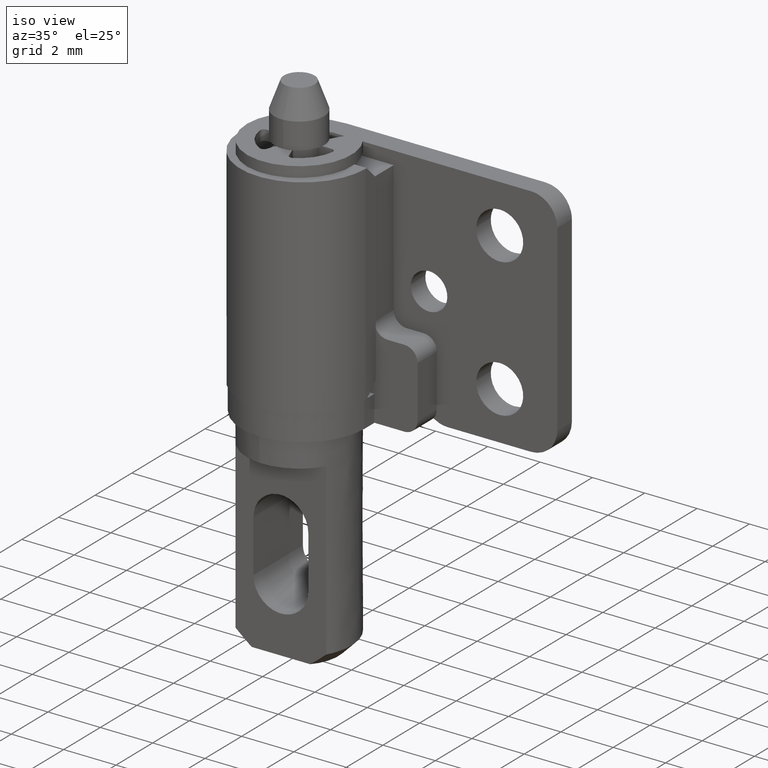
[diagram: clean part render]
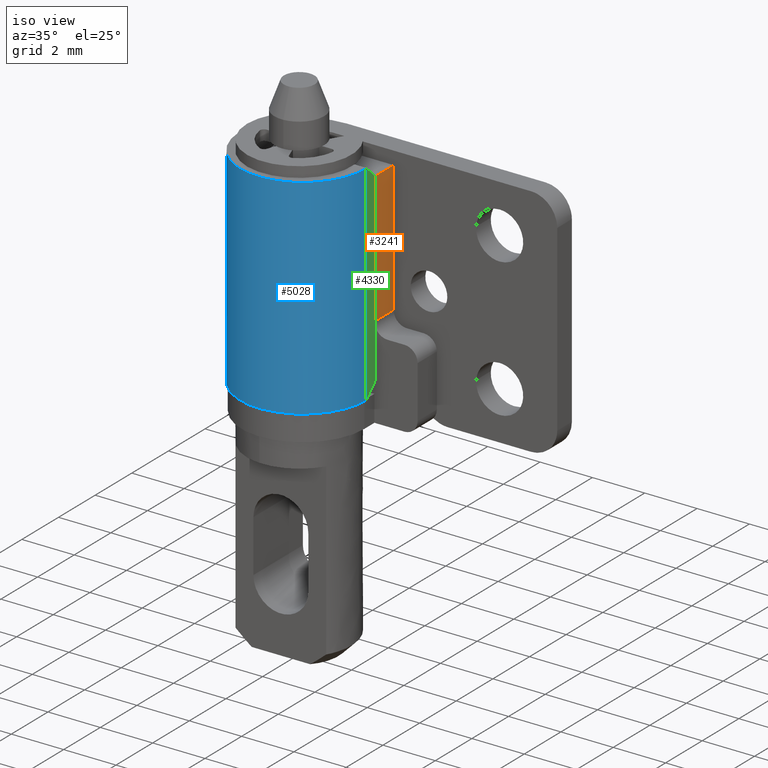
[diagram: same view with three faces highlighted in distinct colors, each labeled with its STEP entity id]
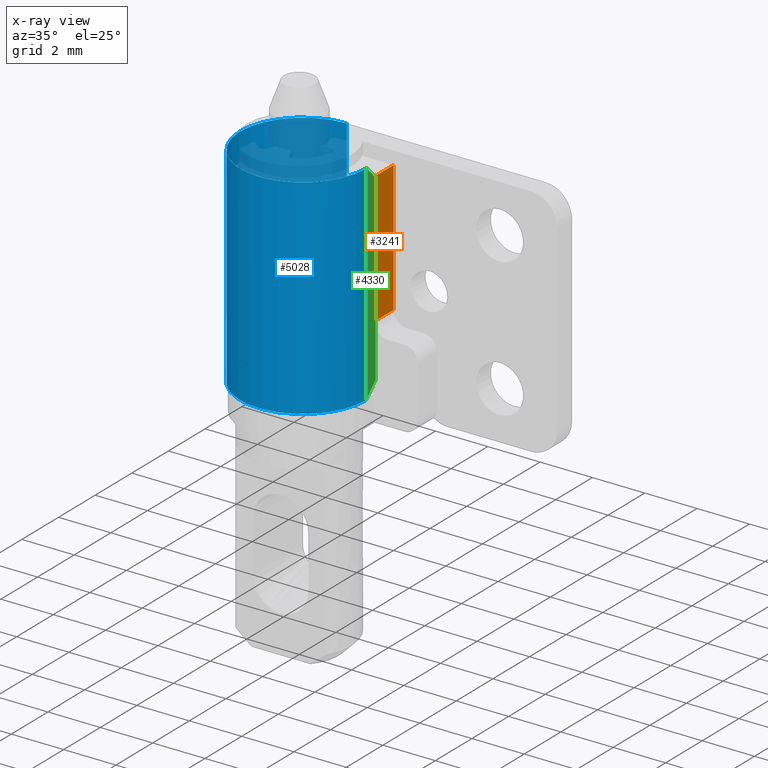
[diagram: x-ray of the same camera — body ghosted, the three highlighted faces saturated]
A machine part, iso view with three faces highlighted in distinct colors.
The next image is the same camera in x-ray (body ghosted, the three faces saturated) — at least one of them is partly hidden behind the body in this view.
Their STEP definitions:

[orange] entity #3241 — the highlighted face is a freeform B-spline surface patch.
#3097=CARTESIAN_POINT('',(2.350000000000000,1.800000000000000,11.500000000000000));
#3098=VERTEX_POINT('',#3097);
#3114=CARTESIAN_POINT('',(2.350000000000000,0.750000000000000,11.500000000000000));
#3115=VERTEX_POINT('',#3114);
#3116=CARTESIAN_POINT('',(2.350000000000000,0.750000000000000,11.500000000000000));
#3117=CARTESIAN_POINT('',(2.350000000000000,1.800000000000000,11.500000000000000));
#3118=QUASI_UNIFORM_CURVE('',1,(#3116,#3117),.UNSPECIFIED.,.F.,.U.);
#3119=EDGE_CURVE('',#3115,#3098,#3118,.T.);
#3194=CARTESIAN_POINT('',(2.350000000000000,0.750000000000000,16.500000000000000));
#3195=VERTEX_POINT('',#3194);
#3201=CARTESIAN_POINT('',(2.350000000000000,1.800000000000000,16.500000000000000));
#3202=VERTEX_POINT('',#3201);
#3203=CARTESIAN_POINT('',(2.350000000000000,1.800000000000000,16.500000000000000));
#3204=CARTESIAN_POINT('',(2.350000000000000,0.750000000000000,16.500000000000000));
#3205=QUASI_UNIFORM_CURVE('',1,(#3203,#3204),.UNSPECIFIED.,.F.,.U.);
#3206=EDGE_CURVE('',#3202,#3195,#3205,.T.);
#3222=CARTESIAN_POINT('',(2.350000000000000,0.697552502035104,16.749749990309031));
#3223=CARTESIAN_POINT('',(2.350000000000000,0.697552502035104,11.250249875580520));
#3224=CARTESIAN_POINT('',(2.350000000000000,1.852447526128091,16.749749990309031));
#3225=CARTESIAN_POINT('',(2.350000000000000,1.852447526128091,11.250249875580520));
#3226=B_SPLINE_SURFACE_WITH_KNOTS('',1,1,((#3222,#3224),(#3223,#3225)),.UNSPECIFIED.,.F.,.F.,.U.,(2,2),(2,2),(0.0,5.499500114728514),(0.041708334948495,0.958291687403247),.UNSPECIFIED.);
#3227=CARTESIAN_POINT('',(2.350000000000000,0.750000000000000,16.500000000000000));
#3228=CARTESIAN_POINT('',(2.350000000000000,0.750000000000000,11.500000000000000));
#3229=QUASI_UNIFORM_CURVE('',1,(#3227,#3228),.UNSPECIFIED.,.F.,.U.);
#3230=EDGE_CURVE('',#3195,#3115,#3229,.T.);
#3231=ORIENTED_EDGE('',*,*,#3230,.T.);
#3232=ORIENTED_EDGE('',*,*,#3119,.T.);
#3233=CARTESIAN_POINT('',(2.350000000000000,1.800000000000000,16.500000000000000));
#3234=CARTESIAN_POINT('',(2.350000000000000,1.800000000000000,11.500000000000000));
#3235=QUASI_UNIFORM_CURVE('',1,(#3233,#3234),.UNSPECIFIED.,.F.,.U.);
#3236=EDGE_CURVE('',#3202,#3098,#3235,.T.);
#3237=ORIENTED_EDGE('',*,*,#3236,.F.);
#3238=ORIENTED_EDGE('',*,*,#3206,.T.);
#3239=EDGE_LOOP('',(#3231,#3232,#3237,#3238));
#3240=FACE_OUTER_BOUND('',#3239,.T.);
#3241=ADVANCED_FACE('',(#3240),#3226,.T.);

[blue] entity #5028 — the highlighted face is a freeform B-spline surface patch.
#4288=CARTESIAN_POINT('',(2.400000000000000,0.199999999999988,9.000000000000108));
#4289=VERTEX_POINT('',#4288);
#4316=CARTESIAN_POINT('',(2.400000000000035,0.199999999999988,17.0));
#4317=VERTEX_POINT('',#4316);
#4323=CARTESIAN_POINT('',(2.400000000000000,0.199999999999988,9.000000000000108));
#4324=CARTESIAN_POINT('',(2.400000000000035,0.199999999999988,17.0));
#4325=QUASI_UNIFORM_CURVE('',1,(#4323,#4324),.UNSPECIFIED.,.F.,.U.);
#4326=EDGE_CURVE('',#4289,#4317,#4325,.T.);
#4857=CARTESIAN_POINT('',(0.0,2.600000000000045,9.0));
#4858=VERTEX_POINT('',#4857);
#4859=CARTESIAN_POINT('',(0.0,2.600000000000045,9.0));
#4860=CARTESIAN_POINT('',(-0.117807704548001,2.600000938103884,9.000000000000005));
#4861=CARTESIAN_POINT('',(-0.412336843036750,2.578297301376353,8.999999999999991));
#4862=CARTESIAN_POINT('',(-0.834980960260857,2.466911120541015,9.000000000000030));
#4863=CARTESIAN_POINT('',(-1.213301925994789,2.281507110138393,8.999999999999975));
#4864=CARTESIAN_POINT('',(-1.516222946302001,2.070932811998147,8.999999999999970));
#4865=CARTESIAN_POINT('',(-1.797217732167637,1.809125938897819,9.000000000000027));
#4866=CARTESIAN_POINT('',(-2.033175386677562,1.496007272475662,8.999999999999989));
#4867=CARTESIAN_POINT('',(-2.196802856793148,1.181781654782506,8.999999999999922));
#4868=CARTESIAN_POINT('',(-2.299574923223785,0.905288362904476,9.000000000000224));
#4869=CARTESIAN_POINT('',(-2.382279787765062,0.568612177828238,8.999999999999833));
#4870=CARTESIAN_POINT('',(-2.411183427686613,0.207131128703586,9.000000000000007));
#4871=CARTESIAN_POINT('',(-2.380769449414349,-0.145722067702748,9.000000000000242));
#4872=CARTESIAN_POINT('',(-2.323576926300933,-0.420048751756929,8.999999999999908));
#4873=CARTESIAN_POINT('',(-2.231909695528349,-0.700418541002367,8.999999999999959));
#4874=CARTESIAN_POINT('',(-2.076246573472896,-1.026993938030161,9.000000000000542));
#4875=CARTESIAN_POINT('',(-1.862798611649264,-1.329065348147361,8.999999999998572));
#4876=CARTESIAN_POINT('',(-1.585055447991110,-1.614587060981526,9.000000000000716));
#4877=CARTESIAN_POINT('',(-1.290136033948403,-1.837552696339725,8.999999999999757));
#4878=CARTESIAN_POINT('',(-0.909591241818198,-2.034250261796553,9.000000000000034));
#4879=CARTESIAN_POINT('',(-0.514103925144783,-2.157550267993957,9.000000000000055));
#4880=CARTESIAN_POINT('',(-0.132796692263792,-2.204559895586096,8.999999999999881));
#4881=CARTESIAN_POINT('',(0.184315590606998,-2.198227796206444,9.000000000000110));
#4882=CARTESIAN_POINT('',(0.520449272405428,-2.152592282708989,9.000000000000195));
#4883=CARTESIAN_POINT('',(0.924889162978570,-2.033309189380690,8.999999999999748));
#4884=CARTESIAN_POINT('',(1.329295208019059,-1.815553629318419,9.000000000000116));
#4885=CARTESIAN_POINT('',(1.627274563759044,-1.573249576500139,8.999999999999979));
#4886=CARTESIAN_POINT('',(1.860752152671142,-1.327273461833276,9.000000000000004));
#4887=CARTESIAN_POINT('',(2.033876322762714,-1.087755994985765,8.999999999999996));
#4888=CARTESIAN_POINT('',(2.190715130986857,-0.795402067191368,9.0));
#4889=CARTESIAN_POINT('',(2.291686969908287,-0.533642955002197,8.999999999999996));
#4890=CARTESIAN_POINT('',(2.377146055115401,-0.190233975030050,9.000000000000036));
#4891=CARTESIAN_POINT('',(2.400019444236524,0.045375886349818,8.999999999999933));
#4892=CARTESIAN_POINT('',(2.400000000000000,0.199999999999988,9.000000000000108));
#4893=B_SPLINE_CURVE_WITH_KNOTS('',3,(#4859,#4860,#4861,#4862,#4863,#4864,#4865,#4866,#4867,#4868,#4869,#4870,#4871,#4872,#4873,#4874,#4875,#4876,#4877,#4878,#4879,#4880,#4881,#4882,#4883,#4884,#4885,#4886,#4887,#4888,#4889,#4890,#4891,#4892),.UNSPECIFIED.,.F.,.U.,(4,1,1,1,1,1,1,1,1,1,1,1,1,1,1,1,1,1,1,1,1,1,1,1,1,1,1,1,1,1,1,4),(0.000000027798633,0.353427150695305,0.883574573381939,1.303274426665954,1.612526542615305,1.988047584179197,2.451927184680304,2.783269720645752,3.048346604530911,3.335510734514617,3.821462803493664,4.130709566565032,4.395783029105128,4.660863817721719,5.014289419486254,5.478171272423724,5.765335255696649,6.207124499407086,6.582647657608725,7.046527721726020,7.444131104943908,7.731282195717392,7.996357283315280,8.460232945157303,8.990383070035559,9.365906425189836,9.608891297987407,10.006500242499300,10.249486957831181,10.602913951453090,10.845905412686450,11.309773471044119),.UNSPECIFIED.);
#4894=EDGE_CURVE('',#4858,#4289,#4893,.T.);
#4914=CARTESIAN_POINT('',(-4.408583E-016,2.600000000000000,17.0));
#4915=VERTEX_POINT('',#4914);
#4921=CARTESIAN_POINT('',(-4.408583E-016,2.600000000000000,17.0));
#4922=CARTESIAN_POINT('',(-0.191445759073999,2.600052283096230,16.999999999999950));
#4923=CARTESIAN_POINT('',(-0.478579783128173,2.565446015609182,17.000000000000028));
#4924=CARTESIAN_POINT('',(-0.852160998208939,2.450233667472978,17.0));
#4925=CARTESIAN_POINT('',(-1.141420615708140,2.319887186043875,17.0));
#4926=CARTESIAN_POINT('',(-1.460170425645326,2.119429829610161,16.999999999999979));
#4927=CARTESIAN_POINT('',(-1.746377884081645,1.862410973482028,17.000000000000089));
#4928=CARTESIAN_POINT('',(-1.962709634886039,1.591234362329801,16.999999999999929));
#4929=CARTESIAN_POINT('',(-2.125555242854200,1.327863421156209,16.999999999999979));
#4930=CARTESIAN_POINT('',(-2.239309491220284,1.079502850431175,17.000000000000259));
#4931=CARTESIAN_POINT('',(-2.349460204788313,0.735530118225977,16.999999999999879));
#4932=CARTESIAN_POINT('',(-2.405380799567322,0.384556472644012,16.999999999999758));
#4933=CARTESIAN_POINT('',(-2.397775287055093,-0.065608851384428,17.000000000000629));
#4934=CARTESIAN_POINT('',(-2.327228233108229,-0.429030367125183,16.999999999999702));
#4935=CARTESIAN_POINT('',(-2.181981143313253,-0.823488119256783,17.000000000000160));
#4936=CARTESIAN_POINT('',(-2.015998169312472,-1.120720715517506,16.999999999999890));
#4937=CARTESIAN_POINT('',(-1.765481194895498,-1.439705718035531,17.000000000000210));
#4938=CARTESIAN_POINT('',(-1.517238521743087,-1.672449042609125,17.000000000000199));
#4939=CARTESIAN_POINT('',(-1.206047760299854,-1.883837203127934,17.000000000000089));
#4940=CARTESIAN_POINT('',(-0.908043552589010,-2.030985757949626,16.999999999999929));
#4941=CARTESIAN_POINT('',(-0.528656096422706,-2.153110922996860,17.000000000000028));
#4942=CARTESIAN_POINT('',(-0.162300168226027,-2.205165463369965,16.999999999999961));
#4943=CARTESIAN_POINT('',(0.206440028501647,-2.197787102088229,17.000000000000028));
#4944=CARTESIAN_POINT('',(0.556798418931694,-2.145284780919841,17.000000000000838));
#4945=CARTESIAN_POINT('',(0.908908700549255,-2.032548382550074,16.999999999999730));
#4946=CARTESIAN_POINT('',(1.218036054619669,-1.875143335730172,17.000000000000039));
#4947=CARTESIAN_POINT('',(1.486717096018603,-1.693227508666245,17.000000000000011));
#4948=CARTESIAN_POINT('',(1.751218338033658,-1.457179467090223,16.999999999999979));
#4949=CARTESIAN_POINT('',(2.010356721034000,-1.134420611897507,17.000000000000021));
#4950=CARTESIAN_POINT('',(2.211315994394226,-0.763934210505071,17.0));
#4951=CARTESIAN_POINT('',(2.361014797856595,-0.315396216716793,17.0));
#4952=CARTESIAN_POINT('',(2.400048883569449,0.008554808075371,17.000000000000011));
#4953=CARTESIAN_POINT('',(2.400000000000035,0.199999999999988,17.0));
#4954=B_SPLINE_CURVE_WITH_KNOTS('',3,(#4921,#4922,#4923,#4924,#4925,#4926,#4927,#4928,#4929,#4930,#4931,#4932,#4933,#4934,#4935,#4936,#4937,#4938,#4939,#4940,#4941,#4942,#4943,#4944,#4945,#4946,#4947,#4948,#4949,#4950,#4951,#4952,#4953),.UNSPECIFIED.,.F.,.U.,(4,1,1,1,1,1,1,1,1,1,1,1,1,1,1,1,1,1,1,1,1,1,1,1,1,1,1,1,1,1,4),(0.000000027799711,0.574321471016827,0.861480123754875,1.170733363863338,1.524167881503892,1.988047584179682,2.319389084867444,2.562375113133919,2.915808732039146,3.136696602440619,3.644757394491898,3.976083586754837,4.484139164420831,4.749216767947921,5.235184863167927,5.500261110947895,5.964141653734071,6.251305496939245,6.626828799515312,6.958166993814983,7.444131104943606,7.731282195717107,8.062622918861951,8.504414790326127,8.835757948166268,9.100830741055269,9.476353560239071,9.896052836424618,10.337841960714069,10.735450827171521,11.309773471044100),.UNSPECIFIED.);
#4955=EDGE_CURVE('',#4915,#4317,#4954,.T.);
#4996=CARTESIAN_POINT('',(2.399177579941337,0.262824675938884,8.799999999999997));
#4997=CARTESIAN_POINT('',(2.399177579941337,0.262824675938884,17.205000000000009));
#4998=CARTESIAN_POINT('',(2.464234436330133,-2.221596436257067,8.799999999999997));
#4999=CARTESIAN_POINT('',(2.464234436330133,-2.221596436257067,17.205000000000002));
#5000=CARTESIAN_POINT('',(-0.020943685196097,-2.199908615354022,8.799999999999997));
#5001=CARTESIAN_POINT('',(-0.020943685196097,-2.199908615354022,17.205000000000009));
#5002=CARTESIAN_POINT('',(-2.506121806722326,-2.178220794450977,8.799999999999997));
#5003=CARTESIAN_POINT('',(-2.506121806722326,-2.178220794450977,17.205000000000002));
#5004=CARTESIAN_POINT('',(-2.397715731796458,0.304686529676794,8.799999999999997));
#5005=CARTESIAN_POINT('',(-2.397715731796458,0.304686529676794,17.205000000000009));
#5006=CARTESIAN_POINT('',(-2.289309656870591,2.787593853804566,8.799999999999997));
#5007=CARTESIAN_POINT('',(-2.289309656870591,2.787593853804566,17.205000000000002));
#5008=CARTESIAN_POINT('',(0.188301829746826,2.592601600959496,8.799999999999997));
#5009=CARTESIAN_POINT('',(0.188301829746826,2.592601600959496,17.205000000000009));
#5017=(BOUNDED_SURFACE()B_SPLINE_SURFACE(1,2,((#4996,#4998,#5000,#5002,#5004,#5006,#5008),(#4997,#4999,#5001,#5003,#5005,#5007,#5009)),.UNSPECIFIED.,.F.,.F.,.U.)B_SPLINE_SURFACE_WITH_KNOTS((2,2),(3,2,2,3),(0.0,8.405000000000010),(0.0,4.074958235612205,8.149916471224410,12.224874706836619),.UNSPECIFIED.)GEOMETRIC_REPRESENTATION_ITEM()RATIONAL_B_SPLINE_SURFACE(((1.0,0.694658370458997,1.0,0.694658370458997,1.0,0.694658370458997,1.0),(1.0,0.694658370458997,1.0,0.694658370458997,1.0,0.694658370458997,1.0)))REPRESENTATION_ITEM('')SURFACE());
#5018=CARTESIAN_POINT('',(0.0,2.600000000000045,9.0));
#5019=CARTESIAN_POINT('',(-4.408583E-016,2.600000000000000,17.0));
#5020=QUASI_UNIFORM_CURVE('',1,(#5018,#5019),.UNSPECIFIED.,.F.,.U.);
#5021=EDGE_CURVE('',#4858,#4915,#5020,.T.);
#5022=ORIENTED_EDGE('',*,*,#5021,.F.);
#5023=ORIENTED_EDGE('',*,*,#4894,.T.);
#5024=ORIENTED_EDGE('',*,*,#4326,.T.);
#5025=ORIENTED_EDGE('',*,*,#4955,.F.);
#5026=EDGE_LOOP('',(#5022,#5023,#5024,#5025));
#5027=FACE_OUTER_BOUND('',#5026,.T.);
#5028=ADVANCED_FACE('',(#5027),#5017,.T.);

[green] entity #4330 — the highlighted face is a freeform B-spline surface patch.
#4281=CARTESIAN_POINT('',(2.400000000000035,0.172527501065993,8.600400015505667));
#4282=CARTESIAN_POINT('',(2.400000000000035,0.172527501065993,17.399600199071159));
#4283=CARTESIAN_POINT('',(2.400000000000035,0.777472513686173,8.600400015505667));
#4284=CARTESIAN_POINT('',(2.400000000000035,0.777472513686173,17.399600199071159));
#4285=B_SPLINE_SURFACE_WITH_KNOTS('',1,1,((#4281,#4283),(#4282,#4284)),.UNSPECIFIED.,.F.,.F.,.U.,(2,2),(2,2),(0.0,8.799200183565496),(0.041708334948495,0.958291687403247),.UNSPECIFIED.);
#4286=CARTESIAN_POINT('',(2.400000000000035,0.249999999999991,9.000000000000119));
#4287=VERTEX_POINT('',#4286);
#4288=CARTESIAN_POINT('',(2.400000000000000,0.199999999999988,9.000000000000108));
#4289=VERTEX_POINT('',#4288);
#4290=CARTESIAN_POINT('',(2.400000000000035,0.249999999999991,9.000000000000119));
#4291=CARTESIAN_POINT('',(2.400000000000000,0.199999999999988,9.000000000000108));
#4292=QUASI_UNIFORM_CURVE('',1,(#4290,#4291),.UNSPECIFIED.,.F.,.U.);
#4293=EDGE_CURVE('',#4287,#4289,#4292,.T.);
#4294=ORIENTED_EDGE('',*,*,#4293,.F.);
#4295=CARTESIAN_POINT('',(2.400000000000035,0.750000000000000,9.500000000000000));
#4296=VERTEX_POINT('',#4295);
#4297=CARTESIAN_POINT('',(2.400000000000035,0.249999999999991,9.000000000000119));
#4298=CARTESIAN_POINT('',(2.400000000000035,0.750000000000000,9.500000000000000));
#4299=QUASI_UNIFORM_CURVE('',1,(#4297,#4298),.UNSPECIFIED.,.F.,.U.);
#4300=EDGE_CURVE('',#4287,#4296,#4299,.T.);
#4301=ORIENTED_EDGE('',*,*,#4300,.T.);
#4302=CARTESIAN_POINT('',(2.400000000000035,0.750000000000028,16.500000000000000));
#4303=VERTEX_POINT('',#4302);
#4304=CARTESIAN_POINT('',(2.400000000000035,0.750000000000000,9.500000000000000));
#4305=CARTESIAN_POINT('',(2.400000000000035,0.750000000000028,16.500000000000000));
#4306=QUASI_UNIFORM_CURVE('',1,(#4304,#4305),.UNSPECIFIED.,.F.,.U.);
#4307=EDGE_CURVE('',#4296,#4303,#4306,.T.);
#4308=ORIENTED_EDGE('',*,*,#4307,.T.);
#4309=CARTESIAN_POINT('',(2.400000000000035,0.250000000000000,17.0));
#4310=VERTEX_POINT('',#4309);
#4311=CARTESIAN_POINT('',(2.400000000000035,0.750000000000028,16.500000000000000));
#4312=CARTESIAN_POINT('',(2.400000000000035,0.250000000000000,17.0));
#4313=QUASI_UNIFORM_CURVE('',1,(#4311,#4312),.UNSPECIFIED.,.F.,.U.);
#4314=EDGE_CURVE('',#4303,#4310,#4313,.T.);
#4315=ORIENTED_EDGE('',*,*,#4314,.T.);
#4316=CARTESIAN_POINT('',(2.400000000000035,0.199999999999988,17.0));
#4317=VERTEX_POINT('',#4316);
#4318=CARTESIAN_POINT('',(2.400000000000035,0.250000000000000,17.0));
#4319=CARTESIAN_POINT('',(2.400000000000035,0.199999999999988,17.0));
#4320=QUASI_UNIFORM_CURVE('',1,(#4318,#4319),.UNSPECIFIED.,.F.,.U.);
#4321=EDGE_CURVE('',#4310,#4317,#4320,.T.);
#4322=ORIENTED_EDGE('',*,*,#4321,.T.);
#4323=CARTESIAN_POINT('',(2.400000000000000,0.199999999999988,9.000000000000108));
#4324=CARTESIAN_POINT('',(2.400000000000035,0.199999999999988,17.0));
#4325=QUASI_UNIFORM_CURVE('',1,(#4323,#4324),.UNSPECIFIED.,.F.,.U.);
#4326=EDGE_CURVE('',#4289,#4317,#4325,.T.);
#4327=ORIENTED_EDGE('',*,*,#4326,.F.);
#4328=EDGE_LOOP('',(#4294,#4301,#4308,#4315,#4322,#4327));
#4329=FACE_OUTER_BOUND('',#4328,.T.);
#4330=ADVANCED_FACE('',(#4329),#4285,.F.);